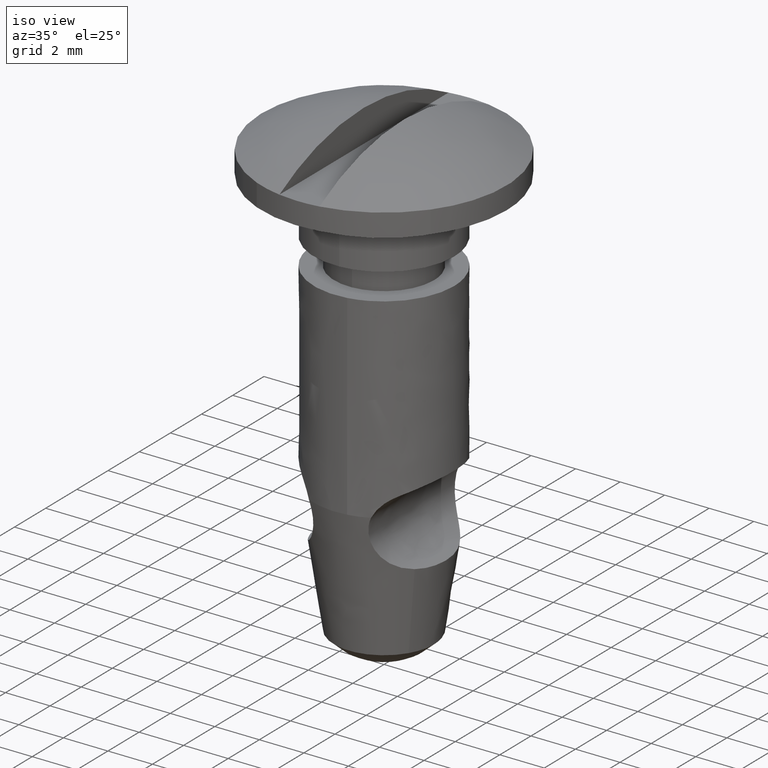
[diagram: clean part render]
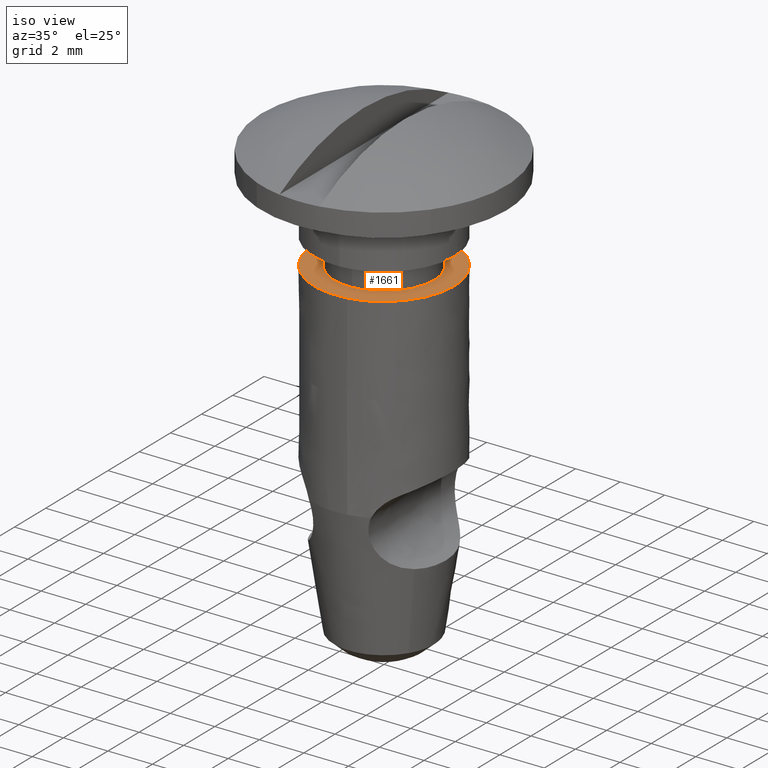
[diagram: same view with one face highlighted and labeled with its STEP entity id]
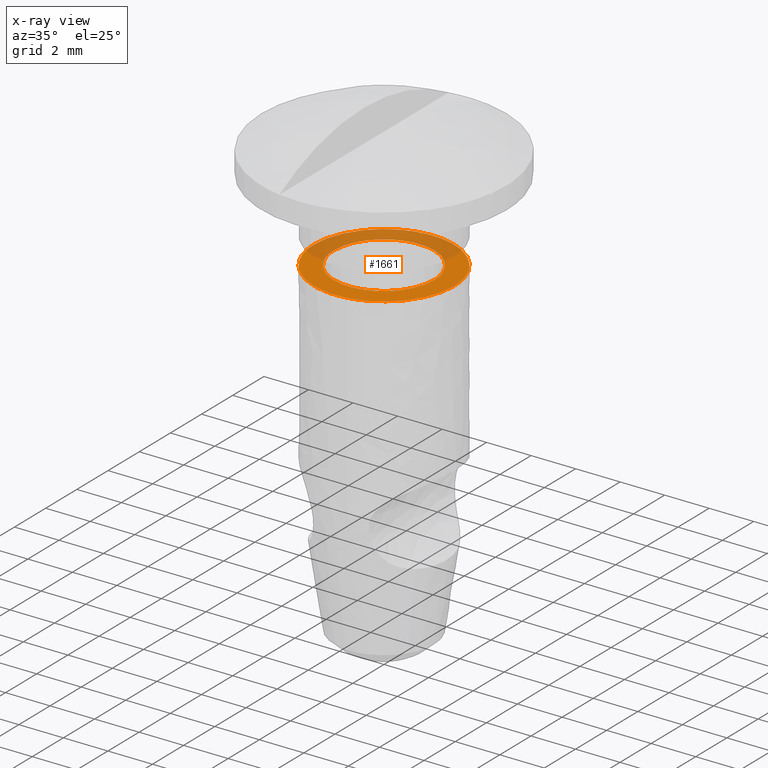
[diagram: x-ray of the same camera — body ghosted, the highlighted face saturated]
A machine part, iso view. The second image highlights one B-rep face of the part: STEP entity #1661.
The next image is the same camera in x-ray: the body ghosted, the highlighted face saturated — about 40% of this face is hidden behind the body in this view.
In plain terms, the highlighted face is a freeform B-spline surface patch.
Its self-contained STEP definition (entity closure, byte-faithful):
#431=CARTESIAN_POINT('',(-0.265577027991037,2.234271434316665,15.800000000000001));
#432=VERTEX_POINT('',#431);
#433=CARTESIAN_POINT('',(2.250000000000000,0.0,15.800000000000001));
#434=VERTEX_POINT('',#433);
#435=CARTESIAN_POINT('',(-0.265577027991037,2.234271434316664,15.800000000000006));
#436=CARTESIAN_POINT('',(-0.133254269230269,2.250000000000000,15.799999999999999));
#437=CARTESIAN_POINT('',(0.0,2.250000000000000,15.800000000000001));
#438=CARTESIAN_POINT('',(2.250000000000000,2.250000000000000,15.800000000000001));
#439=CARTESIAN_POINT('',(2.250000000000000,0.0,15.800000000000001));
#447=(BOUNDED_CURVE()B_SPLINE_CURVE(2,(#435,#436,#437,#438,#439),.UNSPECIFIED.,.F.,.U.)B_SPLINE_CURVE_WITH_KNOTS((3,2,3),(0.229562473513628,0.250000000000000,0.500000000000000),.UNSPECIFIED.)CURVE()GEOMETRIC_REPRESENTATION_ITEM()RATIONAL_B_SPLINE_CURVE((0.956026754183933,0.976055948331285,1.0,0.707106781186547,1.0))REPRESENTATION_ITEM(''));
#448=EDGE_CURVE('',#432,#434,#447,.T.);
#489=CARTESIAN_POINT('',(0.137359213975056,-2.245803296447877,15.800000000000001));
#490=VERTEX_POINT('',#489);
#496=CARTESIAN_POINT('',(2.250000000000000,0.0,15.800000000000001));
#497=CARTESIAN_POINT('',(2.250000000000000,-2.116588650496975,15.800000000000002));
#498=CARTESIAN_POINT('',(0.137359213975056,-2.245803296447877,15.799999999999995));
#506=(BOUNDED_CURVE()B_SPLINE_CURVE(2,(#496,#497,#498),.UNSPECIFIED.,.F.,.U.)B_SPLINE_CURVE_WITH_KNOTS((3,3),(0.500000000000000,0.739332962238645),.UNSPECIFIED.)CURVE()GEOMETRIC_REPRESENTATION_ITEM()RATIONAL_B_SPLINE_CURVE((1.0,0.719603993287059,0.976072041666080))REPRESENTATION_ITEM(''));
#507=EDGE_CURVE('',#434,#490,#506,.T.);
#530=CARTESIAN_POINT('',(-2.250000000000000,0.0,15.800000000000001));
#531=VERTEX_POINT('',#530);
#532=CARTESIAN_POINT('',(-2.250000000000000,0.0,15.800000000000001));
#533=CARTESIAN_POINT('',(-2.250000000000000,1.998392683366563,15.800000000000001));
#534=CARTESIAN_POINT('',(-0.265577027991037,2.234271434316664,15.800000000000006));
#542=(BOUNDED_CURVE()B_SPLINE_CURVE(2,(#532,#533,#534),.UNSPECIFIED.,.F.,.U.)B_SPLINE_CURVE_WITH_KNOTS((3,3),(0.0,0.229562473513628),.UNSPECIFIED.)CURVE()GEOMETRIC_REPRESENTATION_ITEM()RATIONAL_B_SPLINE_CURVE((1.0,0.731050832855263,0.956026754183933))REPRESENTATION_ITEM(''));
#543=EDGE_CURVE('',#531,#432,#542,.T.);
#545=CARTESIAN_POINT('',(0.137359213975056,-2.245803296447877,15.799999999999999));
#546=CARTESIAN_POINT('',(0.068743717443514,-2.250000000000000,15.799999999999995));
#547=CARTESIAN_POINT('',(0.0,-2.250000000000000,15.800000000000001));
#548=CARTESIAN_POINT('',(-2.250000000000000,-2.250000000000000,15.800000000000001));
#549=CARTESIAN_POINT('',(-2.250000000000000,0.0,15.800000000000001));
#557=(BOUNDED_CURVE()B_SPLINE_CURVE(2,(#545,#546,#547,#548,#549),.UNSPECIFIED.,.F.,.U.)B_SPLINE_CURVE_WITH_KNOTS((3,2,3),(0.739332962238645,0.750000000000000,1.0),.UNSPECIFIED.)CURVE()GEOMETRIC_REPRESENTATION_ITEM()RATIONAL_B_SPLINE_CURVE((0.976072041666079,0.987502787899488,1.0,0.707106781186547,1.0))REPRESENTATION_ITEM(''));
#558=EDGE_CURVE('',#490,#531,#557,.T.);
#1001=CARTESIAN_POINT('',(-2.816922847399866,-1.409767949627387,15.800000000000001));
#1002=VERTEX_POINT('',#1001);
#1003=CARTESIAN_POINT('',(-3.150000000000000,0.0,15.800000000000001));
#1004=VERTEX_POINT('',#1003);
#1005=CARTESIAN_POINT('',(-2.816922847399866,-1.409767949627386,15.800000000000002));
#1006=CARTESIAN_POINT('',(-3.150000000000000,-0.744230933709373,15.800000000000004));
#1007=CARTESIAN_POINT('',(-3.150000000000000,0.0,15.800000000000001));
#1015=(BOUNDED_CURVE()B_SPLINE_CURVE(2,(#1005,#1006,#1007),.UNSPECIFIED.,.F.,.U.)B_SPLINE_CURVE_WITH_KNOTS((3,3),(0.923914174302995,1.0),.UNSPECIFIED.)CURVE()GEOMETRIC_REPRESENTATION_ITEM()RATIONAL_B_SPLINE_CURVE((0.875978199390116,0.910859910422100,1.0))REPRESENTATION_ITEM(''));
#1016=EDGE_CURVE('',#1002,#1004,#1015,.T.);
#1018=CARTESIAN_POINT('',(3.150000000000000,0.0,15.800000000000001));
#1019=VERTEX_POINT('',#1018);
#1020=CARTESIAN_POINT('',(-3.150000000000000,0.0,15.800000000000001));
#1021=CARTESIAN_POINT('',(-3.149999999999999,3.149999999999999,15.799999999999997));
#1022=CARTESIAN_POINT('',(0.0,3.150000000000000,15.800000000000001));
#1023=CARTESIAN_POINT('',(3.149999999999999,3.149999999999999,15.799999999999997));
#1024=CARTESIAN_POINT('',(3.150000000000000,0.0,15.800000000000001));
#1032=(BOUNDED_CURVE()B_SPLINE_CURVE(2,(#1020,#1021,#1022,#1023,#1024),.UNSPECIFIED.,.F.,.U.)B_SPLINE_CURVE_WITH_KNOTS((3,2,3),(0.0,0.250000000000000,0.500000000000000),.UNSPECIFIED.)CURVE()GEOMETRIC_REPRESENTATION_ITEM()RATIONAL_B_SPLINE_CURVE((1.0,0.707106781186548,1.0,0.707106781186548,1.0))REPRESENTATION_ITEM(''));
#1033=EDGE_CURVE('',#1004,#1019,#1032,.T.);
#1035=CARTESIAN_POINT('',(0.519895864489646,-3.106800329932603,15.800000000000001));
#1036=VERTEX_POINT('',#1035);
#1037=CARTESIAN_POINT('',(3.150000000000000,0.0,15.800000000000001));
#1038=CARTESIAN_POINT('',(3.149999999999999,-2.666675404604687,15.799999999999997));
#1039=CARTESIAN_POINT('',(0.519895864489646,-3.106800329932603,15.799999999999997));
#1047=(BOUNDED_CURVE()B_SPLINE_CURVE(2,(#1037,#1038,#1039),.UNSPECIFIED.,.F.,.U.)B_SPLINE_CURVE_WITH_KNOTS((3,3),(0.500000000000000,0.721599700964532),.UNSPECIFIED.)CURVE()GEOMETRIC_REPRESENTATION_ITEM()RATIONAL_B_SPLINE_CURVE((1.0,0.740379801185598,0.941013669744188))REPRESENTATION_ITEM(''));
#1048=EDGE_CURVE('',#1019,#1036,#1047,.T.);
#1165=CARTESIAN_POINT('',(0.519895864489646,-3.106800329932603,15.799999999999997));
#1166=CARTESIAN_POINT('',(0.261742725800032,-3.150000000000000,15.800000000000002));
#1167=CARTESIAN_POINT('',(0.0,-3.150000000000000,15.800000000000001));
#1168=CARTESIAN_POINT('',(-1.945999784762892,-3.149999999999999,15.800000000000002));
#1169=CARTESIAN_POINT('',(-2.816922847399866,-1.409767949627387,15.800000000000001));
#1177=(BOUNDED_CURVE()B_SPLINE_CURVE(2,(#1165,#1166,#1167,#1168,#1169),.UNSPECIFIED.,.F.,.U.)B_SPLINE_CURVE_WITH_KNOTS((3,2,3),(0.721599700964532,0.750000000000000,0.923914174302995),.UNSPECIFIED.)CURVE()GEOMETRIC_REPRESENTATION_ITEM()RATIONAL_B_SPLINE_CURVE((0.941013669744188,0.966726980000949,1.0,0.796246870764449,0.875978199390115))REPRESENTATION_ITEM(''));
#1178=EDGE_CURVE('',#1036,#1002,#1177,.T.);
#1644=CARTESIAN_POINT('',(3.464685106069162,-3.464660326454200,15.800000000000001));
#1645=CARTESIAN_POINT('',(-3.464685162395551,-3.464660326454200,15.800000000000001));
#1646=CARTESIAN_POINT('',(3.464685106069162,3.464683983537712,15.800000000000001));
#1647=CARTESIAN_POINT('',(-3.464685162395551,3.464683983537712,15.800000000000001));
#1648=B_SPLINE_SURFACE_WITH_KNOTS('',1,1,((#1644,#1646),(#1645,#1647)),.UNSPECIFIED.,.F.,.F.,.U.,(2,2),(2,2),(0.0,6.929370268464713),(0.0,6.929344309991912),.UNSPECIFIED.);
#1649=ORIENTED_EDGE('',*,*,#1016,.F.);
#1650=ORIENTED_EDGE('',*,*,#1178,.F.);
#1651=ORIENTED_EDGE('',*,*,#1048,.F.);
#1652=ORIENTED_EDGE('',*,*,#1033,.F.);
#1653=EDGE_LOOP('',(#1649,#1650,#1651,#1652));
#1654=FACE_OUTER_BOUND('',#1653,.T.);
#1655=ORIENTED_EDGE('',*,*,#507,.T.);
#1656=ORIENTED_EDGE('',*,*,#558,.T.);
#1657=ORIENTED_EDGE('',*,*,#543,.T.);
#1658=ORIENTED_EDGE('',*,*,#448,.T.);
#1659=EDGE_LOOP('',(#1655,#1656,#1657,#1658));
#1660=FACE_BOUND('',#1659,.T.);
#1661=ADVANCED_FACE('',(#1654,#1660),#1648,.F.);